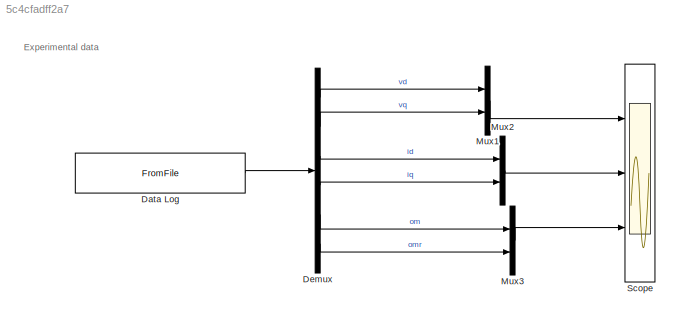
MODEL slx_5c4cfadff2a7
KIND model
CONFIG AbsTol = auto
CONFIG EnableMultiTasking = off
CONFIG FixedStep = 1e-4
CONFIG MaxStep = auto
CONFIG MinStep = auto
CONFIG RelTol = 1e-3
CONFIG SampleTimeConstraint = Unconstrained
CONFIG SolverName = FixedStepAuto
CONFIG StartTime = 0.0
CONFIG StopTime = 5.5
BLOCK [FromFile] Data Log
  FileName = Sim_2021_12_21_at_11h39_12s.mat
  SampleTime = 1e-4
BLOCK [Demux] Demux
  Outputs = 6
  Ports = [1, 6]
BLOCK [Mux] Mux1
  DisplayOption = bar
  Inputs = 2
  Ports = [2, 1]
BLOCK [Mux] Mux2
  DisplayOption = bar
  Inputs = 2
  Ports = [2, 1]
BLOCK [Mux] Mux3
  DisplayOption = bar
  Inputs = 2
  Ports = [2, 1]
BLOCK [Scope] Scope
  Floating = off
  NumInputPorts = 3
  Ports = [3]
  ScopeSpecificationString = Simulink.scopes.TimeScopeBlockCfg('CurrentConfiguration', extmgr.ConfigurationSet(extmgr.Configuration('Core','General UI',true),extmgr.Configuration('Core','Source UI',true),extmgr.Configuration('Sources','WiredSimulink',true),extmgr.Configuration('Visuals','Time Domain',true,'SerializedDisplays',{struct('MinYLimReal','-2.95808','MaxYLimReal','11.89786','YLabelReal','','MinYLimMag','0.00000','Max...<+2689ch>
ANNOTATION (root): Experimental data
LINE Data Log:1 -> Demux:1
LINE Demux:1 -> Mux1:1
LINE Demux:2 -> Mux1:2
LINE Demux:3 -> Mux2:1
LINE Demux:4 -> Mux2:2
LINE Demux:5 -> Mux3:1
LINE Demux:6 -> Mux3:2
LINE Mux1:1 -> Scope:1
LINE Mux2:1 -> Scope:2
LINE Mux3:1 -> Scope:3
